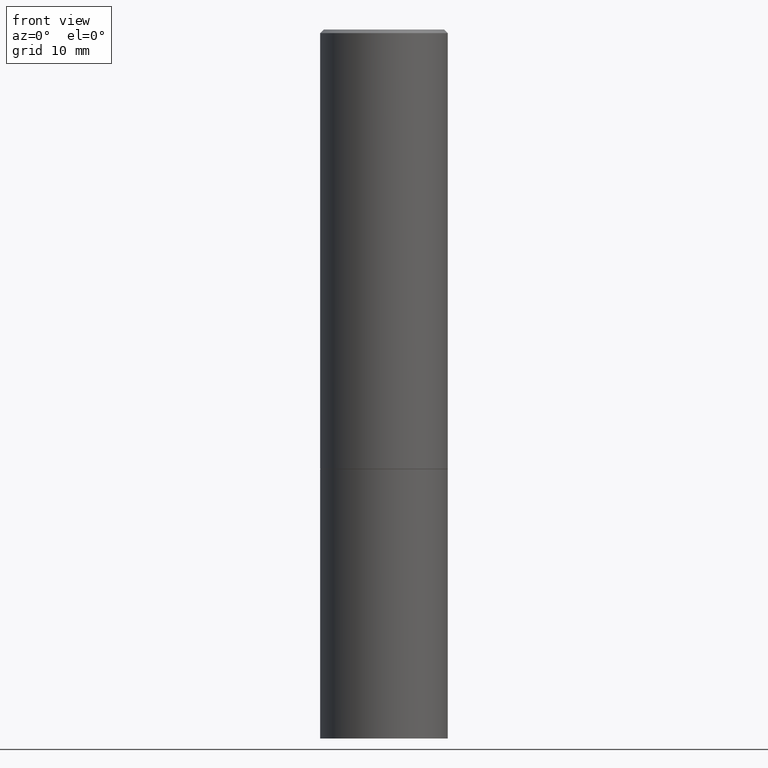
[diagram: clean part render]
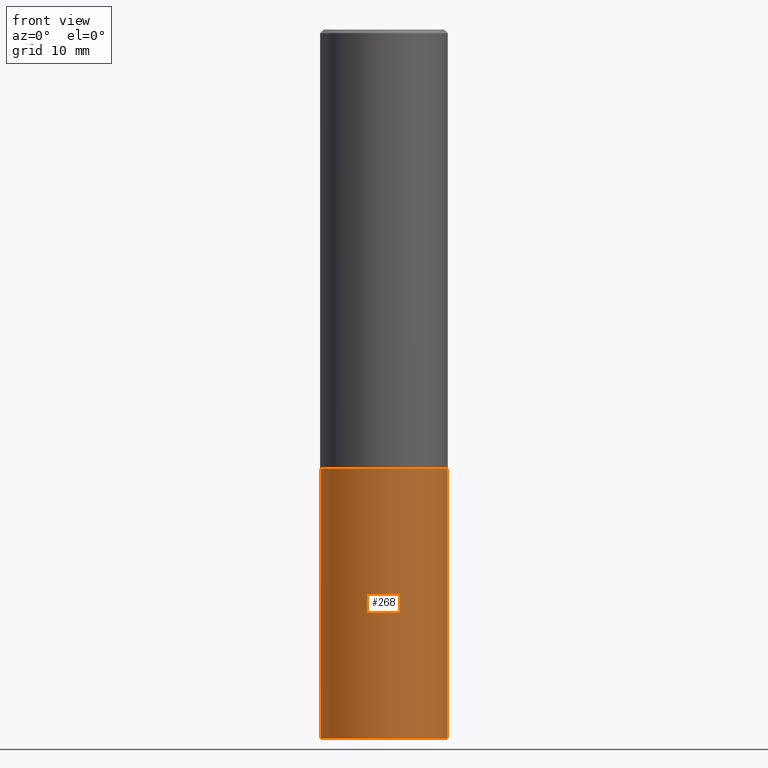
[diagram: same view with one face highlighted and labeled with its STEP entity id]
A machine part, front view. The second image highlights one B-rep face of the part: STEP entity #268.
In plain terms, the highlighted cylindrical surface (partial cylindrical patch) has radius 9.0005 mm, axis along (-0, 0, 1).
Its self-contained STEP definition (entity closure, byte-faithful):
#4 = CARTESIAN_POINT ( 'NONE',  ( 0.3543499999999999983, -2.474412824838128694E-15, 1.727873240503289749E-29 ) ) ;
#24 = VERTEX_POINT ( 'NONE', #142 ) ;
#27 = DIRECTION ( 'NONE',  ( 1.000000000000000000, -6.982962677686266711E-15, 4.876176775795935793E-29 ) ) ;
#33 = DIRECTION ( 'NONE',  ( -2.445468806185136597E-29, 3.491481338843145583E-15, 1.000000000000000000 ) ) ;
#37 = CARTESIAN_POINT ( 'NONE',  ( 5.969144809017300159E-29, -8.522356799982234543E-15, -2.440900000000000070 ) ) ;
#44 = EDGE_CURVE ( 'NONE', #299, #261, #253, .T. ) ;
#45 = ORIENTED_EDGE ( 'NONE', *, *, #44, .F. ) ;
#56 = DIRECTION ( 'NONE',  ( -2.445468806185136597E-29, 3.491481338843145583E-15, 1.000000000000000000 ) ) ;
#58 = CARTESIAN_POINT ( 'NONE',  ( -0.3543499999999999983, -8.616351231337934377E-15, -2.440900000000000070 ) ) ;
#61 = DIRECTION ( 'NONE',  ( -2.445468806185136597E-29, 3.491481338843145583E-15, 1.000000000000000000 ) ) ;
#74 = VECTOR ( 'NONE', #123, 39.37007874015748143 ) ;
#77 = CARTESIAN_POINT ( 'NONE',  ( -0.3543499999999999983, -8.616351231337934377E-15, -3.937000000000000277 ) ) ;
#78 = ORIENTED_EDGE ( 'NONE', *, *, #333, .F. ) ;
#108 = VECTOR ( 'NONE', #361, 39.37007874015748143 ) ;
#113 = CARTESIAN_POINT ( 'NONE',  ( 0.000000000000000000, 0.000000000000000000, 0.000000000000000000 ) ) ;
#123 = DIRECTION ( 'NONE',  ( -2.445468806185136877E-29, 3.491481338843145188E-15, 1.000000000000000000 ) ) ;
#134 = VERTEX_POINT ( 'NONE', #198 ) ;
#142 = CARTESIAN_POINT ( 'NONE',  ( 0.3543499999999999983, -1.099676962482036284E-14, -2.440900000000000070 ) ) ;
#145 = DIRECTION ( 'NONE',  ( 1.000000000000000000, -6.982962677686265922E-15, 0.000000000000000000 ) ) ;
#152 = DIRECTION ( 'NONE',  ( 1.000000000000000000, -6.982962677686265922E-15, 0.000000000000000000 ) ) ;
#164 = CIRCLE ( 'NONE', #329, 0.3543499999999999983 ) ;
#171 = EDGE_CURVE ( 'NONE', #134, #24, #263, .T. ) ;
#176 = CIRCLE ( 'NONE', #365, 0.3543499999999999983 ) ;
#194 = EDGE_LOOP ( 'NONE', ( #45, #201, #238, #78 ) ) ;
#198 = CARTESIAN_POINT ( 'NONE',  ( 0.3543499999999999983, -1.622037485586359329E-14, -3.937000000000000277 ) ) ;
#201 = ORIENTED_EDGE ( 'NONE', *, *, #295, .T. ) ;
#203 = CARTESIAN_POINT ( 'NONE',  ( -0.3543499999999999983, 2.517808184165914997E-15, -1.743024649231826066E-29 ) ) ;
#221 = FACE_OUTER_BOUND ( 'NONE', #194, .T. ) ;
#238 = ORIENTED_EDGE ( 'NONE', *, *, #171, .T. ) ;
#253 = LINE ( 'NONE', #203, #108 ) ;
#261 = VERTEX_POINT ( 'NONE', #58 ) ;
#263 = LINE ( 'NONE', #4, #74 ) ;
#268 = ADVANCED_FACE ( 'NONE', ( #221 ), #304, .T. ) ;
#295 = EDGE_CURVE ( 'NONE', #299, #134, #164, .T. ) ;
#299 = VERTEX_POINT ( 'NONE', #77 ) ;
#304 = CYLINDRICAL_SURFACE ( 'NONE', #337, 0.3543499999999999983 ) ;
#310 = CARTESIAN_POINT ( 'NONE',  ( 9.627810689950883669E-29, -1.374596203102546341E-14, -3.937000000000000277 ) ) ;
#329 = AXIS2_PLACEMENT_3D ( 'NONE', #310, #61, #145 ) ;
#333 = EDGE_CURVE ( 'NONE', #261, #24, #176, .T. ) ;
#337 = AXIS2_PLACEMENT_3D ( 'NONE', #113, #56, #27 ) ;
#361 = DIRECTION ( 'NONE',  ( -2.445468806185136877E-29, 3.491481338843145188E-15, 1.000000000000000000 ) ) ;
#365 = AXIS2_PLACEMENT_3D ( 'NONE', #37, #33, #152 ) ;